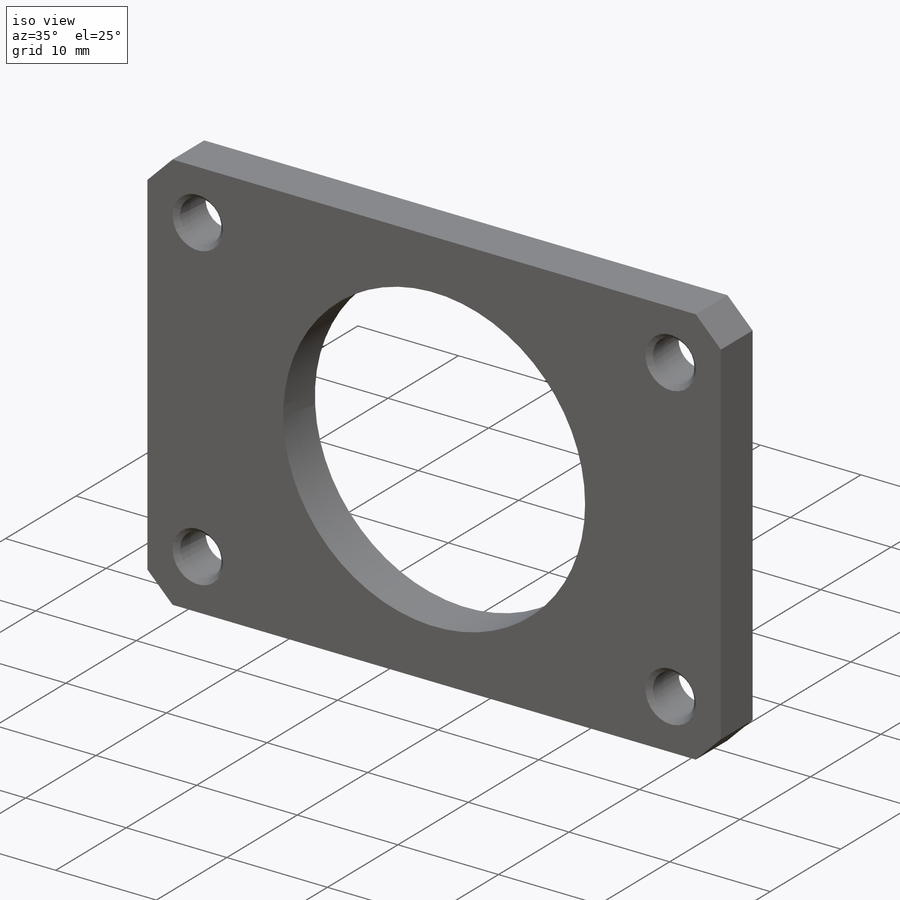
[diagram: iso view]
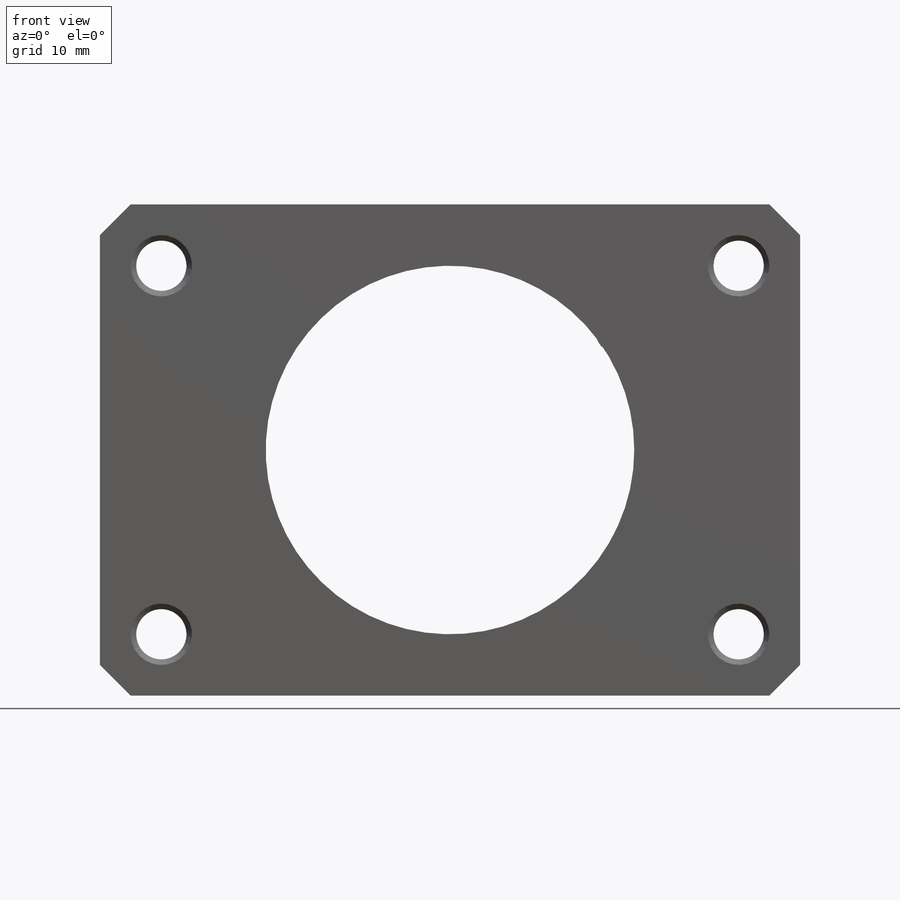
[diagram: front view]
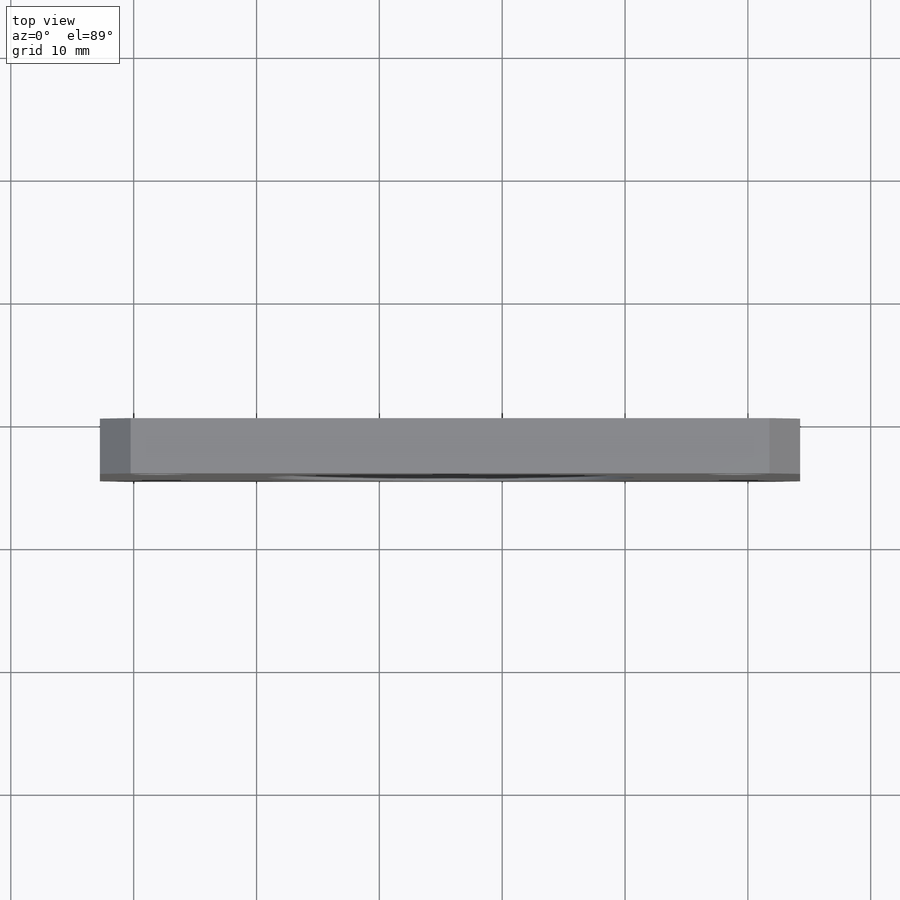
[diagram: top view]
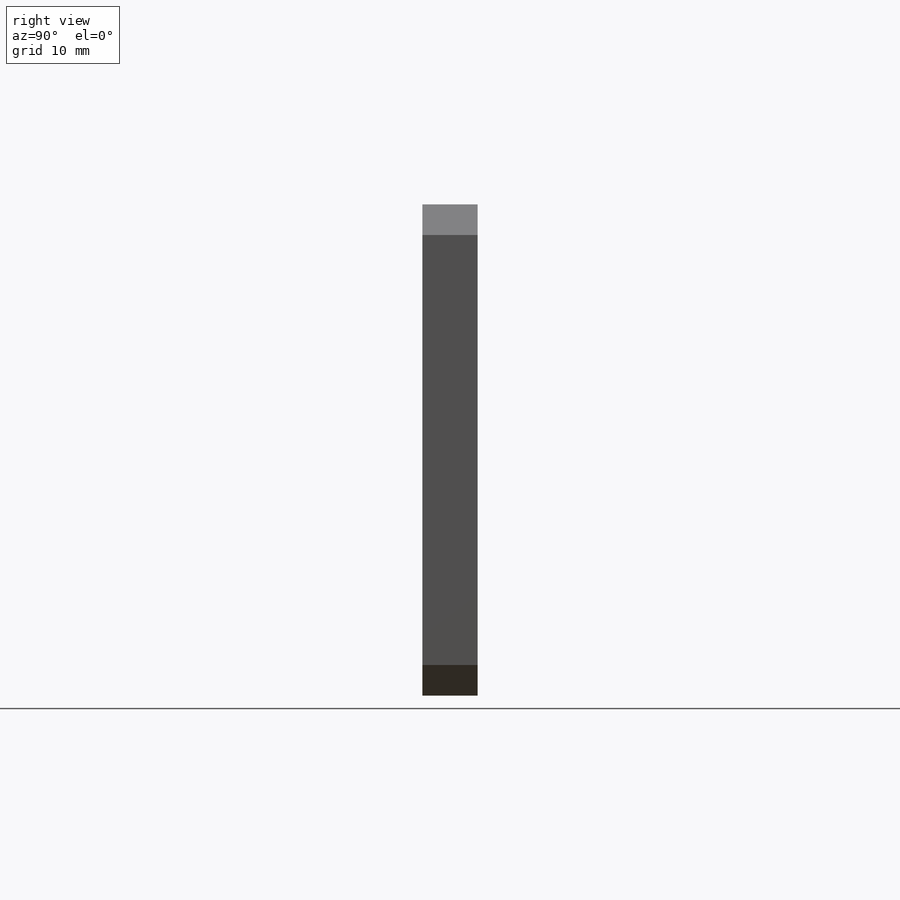
[diagram: right view]
SOLIDWORKS PART (.sldprt)
format: sldprt  version: not decoded by parser v0  size: 297,984 bytes
history: native  units: mm
features: plane x3, sketch x2, chamfer x2, mirror x2, material x1, extrude x1, thread x1, cut_extrude x1 (+9 scaffold rows collapsed)
feature tree (22):
  scaffold x9  (default folders/planes/origin — collapsed)
  material  "Сталь"
  plane  "Спереди"
  plane  "Сверху"
  plane  "Справа"
  sketch  "Эскиз1"  dims[c1.D3=~4.296978mm c1.D4=~4.296978mm c1.D5=4.11mm c1.D1=28.5mm c1.D2=20.0mm c2.D3=5.0mm c2.D4=5.0mm]
  extrude  "Бобышка-Вытянуть1"  [1 undecoded]
  thread  "Условное изображение резьбы1"  Diameter=5mm  [1 undecoded]
  chamfer  "Фаска1"  Distance=2.5mm Angle=45deg
  chamfer  "Фаска2"  Distance=0.445mm Angle=45deg
  mirror  "Зеркальное отражение1"
  mirror  "Зеркальное отражение2"
  sketch  "Эскиз2"  dims[D1=30.0mm]
  cut_extrude  "Вырез-Вытянуть1"  [1 undecoded]
decode coverage: 5 of 9 modeling features carry decoded parameters
note: ~ marks probable driven/reference dimensions
note: 3 parameter values undecoded
note: suppression state not decoded; provenance and decode notes live in map.json
